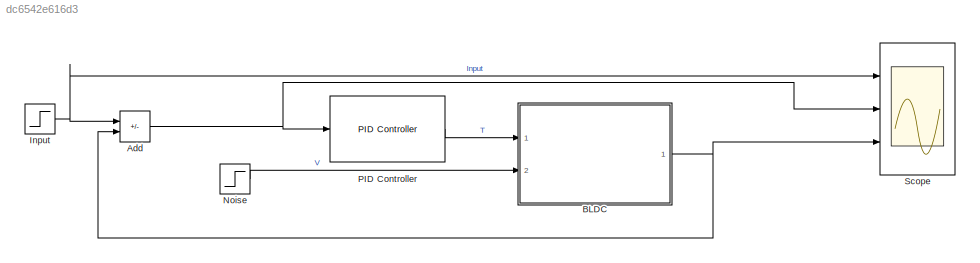
MODEL slx_dc6542e616d3
KIND model
CONFIG AbsTol = auto
CONFIG EnableMultiTasking = off
CONFIG FixedStep = auto
CONFIG MaxStep = auto
CONFIG MinStep = auto
CONFIG RelTol = 1e-3
CONFIG SampleTimeConstraint = Unconstrained
CONFIG SolverName = VariableStepAuto
CONFIG StartTime = 0.0
CONFIG StopTime = 10.0
BLOCK [Sum] Add
  IconShape = rectangular
  Inputs = +-
  Ports = [2, 1]
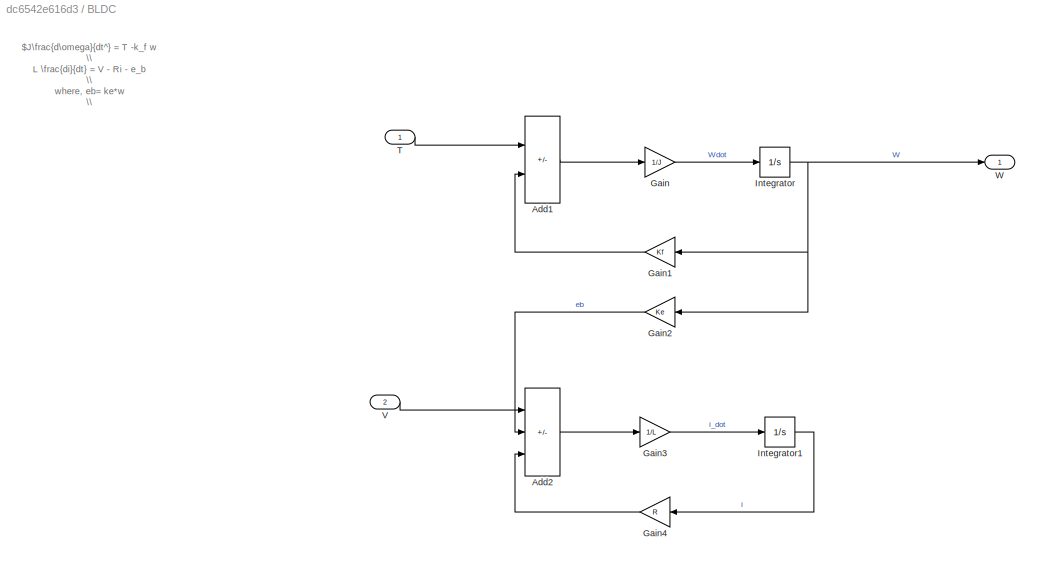
BLOCK [SubSystem] BLDC
  Ports = [2, 1]
  RequestExecContextInheritance = off
BLOCK [Sum] BLDC/Add1
  IconShape = rectangular
  Inputs = +-
  Ports = [2, 1]
BLOCK [Sum] BLDC/Add2
  IconShape = rectangular
  Inputs = +--
  Ports = [3, 1]
BLOCK [Gain] BLDC/Gain
  Gain = 1/J
BLOCK [Gain] BLDC/Gain1
  Gain = Kf
  NameLocation = top
BLOCK [Gain] BLDC/Gain2
  Gain = Ke
  NameLocation = top
BLOCK [Gain] BLDC/Gain3
  Gain = 1/L
BLOCK [Gain] BLDC/Gain4
  Gain = R
  NameLocation = top
BLOCK [Integrator] BLDC/Integrator
  Ports = [1, 1]
BLOCK [Integrator] BLDC/Integrator1
  Ports = [1, 1]
BLOCK [Inport] BLDC/T
BLOCK [Inport] BLDC/V
  Port = 2
BLOCK [Outport] BLDC/W
BLOCK [Step] Input
  SampleTime = 0
BLOCK [Step] Noise
  After = 0
  Before = 1
  SampleTime = 0
BLOCK [Reference] PID Controller  REF=pid_lib/PID Controller
  Ports = [1, 1]
  SourceBlock = pid_lib/PID Controller
  SourceProductBaseCode = SL
  SourceType = PID 1dof
BLOCK [Scope] Scope
  Floating = off
  NumInputPorts = 3
  Ports = [3]
  ScopeSpecificationString = Simulink.scopes.TimeScopeBlockCfg('CurrentConfiguration', extmgr.ConfigurationSet(extmgr.Configuration('Core','General UI',true),extmgr.Configuration('Core','Source UI',true),extmgr.Configuration('Sources','WiredSimulink',true),extmgr.Configuration('Visuals','Time Domain',true,'SerializedDisplays',{struct('MinYLimReal','-0.125','MaxYLimReal','1.125','YLabelReal','','MinYLimMag','0.00000','MaxYLimM...<+2733ch>
ANNOTATION BLDC: $J\frac{d\omega}{dt^} = T -k_f w \\ L \frac{di}{dt} = V - Ri - e_b \\ where, eb= ke*w \\ k_e= BackEMF \\ k_f=DampingCoeff$
NET Add:1 -> PID Controller:1, Scope:2
LINE BLDC/Add1:1 -> BLDC/Gain:1
LINE BLDC/Add2:1 -> BLDC/Gain3:1
LINE BLDC/Gain1:1 -> BLDC/Add1:2
LINE BLDC/Gain2:1 -> BLDC/Add2:2
LINE BLDC/Gain3:1 -> BLDC/Integrator1:1
LINE BLDC/Gain4:1 -> BLDC/Add2:3
LINE BLDC/Gain:1 -> BLDC/Integrator:1
LINE BLDC/Integrator1:1 -> BLDC/Gain4:1
NET BLDC/Integrator:1 -> BLDC/Gain1:1, BLDC/Gain2:1, BLDC/W:1
LINE BLDC/T:1 -> BLDC/Add1:1
LINE BLDC/V:1 -> BLDC/Add2:1
NET BLDC:1 -> Add:2, Scope:3
NET Input:1 -> Add:1, Scope:1
LINE Noise:1 -> BLDC:2
LINE PID Controller:1 -> BLDC:1
note: NET lines group one-source signal fan-out (src -> all destinations, sorted); 1:1 wires keep LINE
